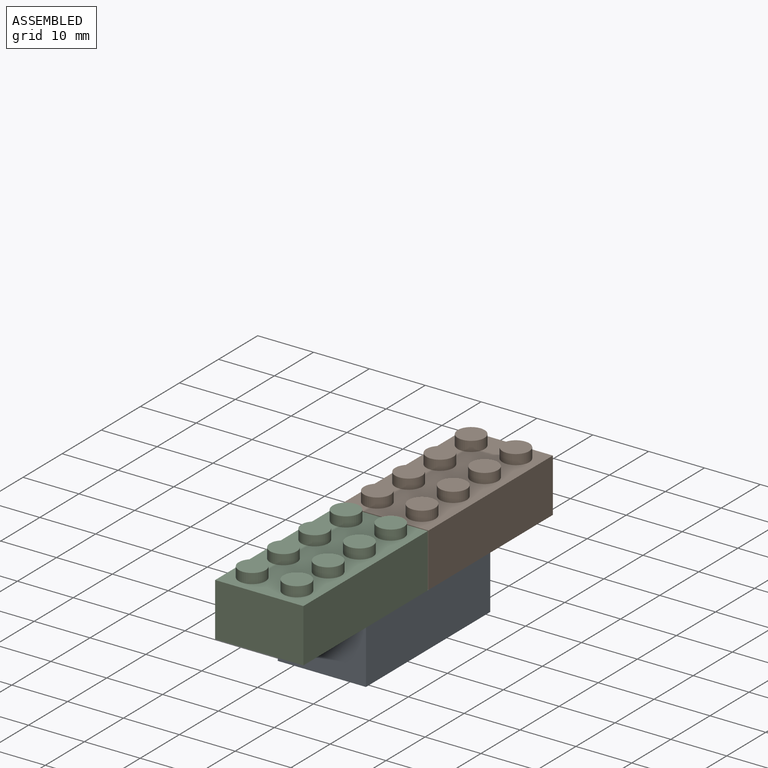
[diagram: assembled view]
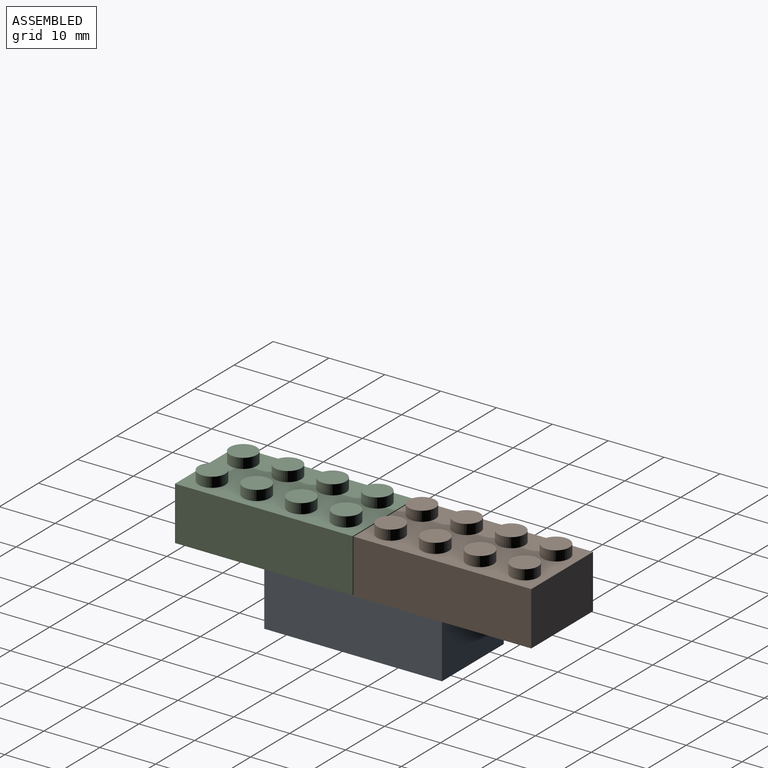
[diagram: assembled view, second angle]
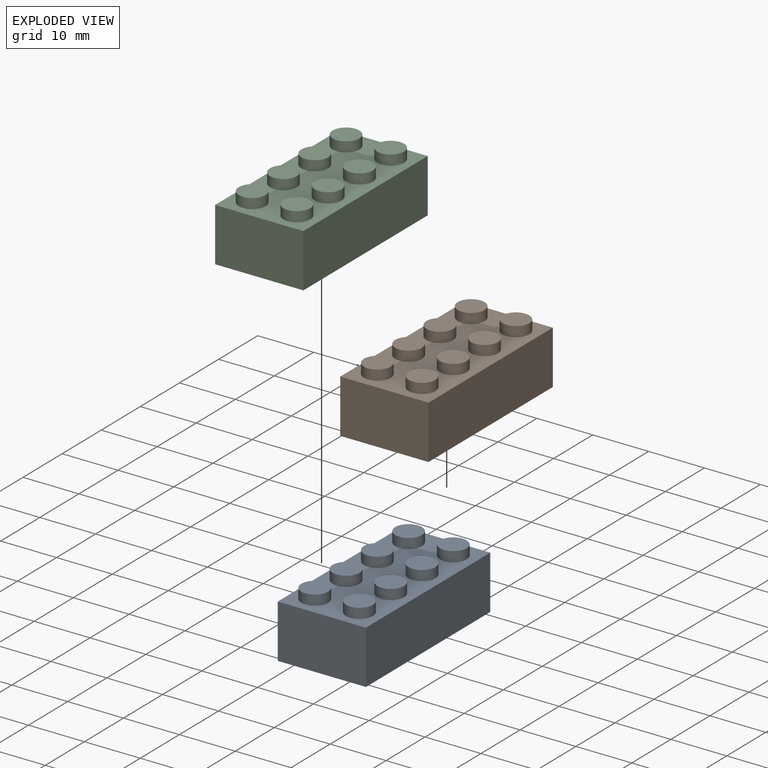
[diagram: exploded view]
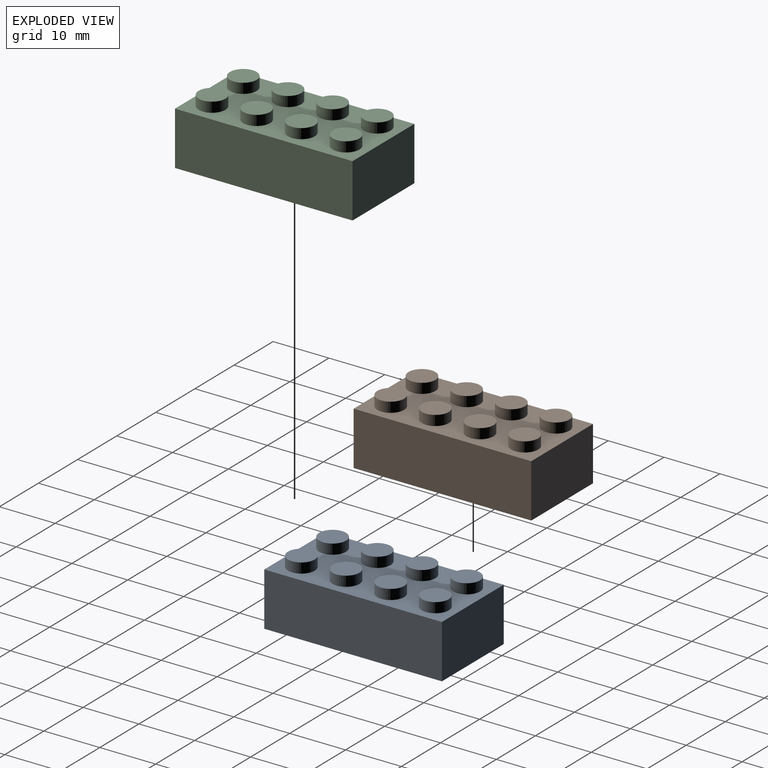
[diagram: exploded view, second angle]
ASSEMBLY  parts=3 mates=4
PART A: 55 faces, bbox 15.8x31.8x11.4 mm
  f0: plane 31.8x9.6mm, normal (1,0,0), area 305.3mm2, adj f1,f3,f4,f5
  f1: plane 15.8x9.6mm, normal (0,1,0), area 151.7mm2, adj f0,f2,f4,f5
  f2: plane 31.8x9.6mm, normal (-1,0,0), area 305.3mm2, adj f1,f3,f4,f5
  f3: plane 15.8x9.6mm, normal (0,-1,0), area 151.7mm2, adj f0,f2,f4,f5
  f4: plane 31.8x15.8mm, normal (0,0,1), area 357.7mm2, adj f0,f1,f2,f3,f6,f8,f10,f12
  f5: plane 31.8x15.8mm, normal (0,0,-1), area 91.2mm2, adj f0,f1,f2,f3,f22,f23,f24,f25
  f6: cylinder r=2.4mm len=4.8mm, axis (0,0,-1), area 27.1mm2, adj f4,f7
  f7: plane 4.8x4.8mm, normal (0,0,1), area 18.1mm2, adj f6
  f8: cylinder r=2.4mm len=4.8mm, axis (0,0,-1), area 27.1mm2, adj f4,f9
  f9: plane 4.8x4.8mm, normal (0,0,1), area 18.1mm2, adj f8
  f10: cylinder r=2.4mm len=4.8mm, axis (0,0,-1), area 27.1mm2, adj f4,f11
  f11: plane 4.8x4.8mm, normal (0,0,1), area 18.1mm2, adj f10
  f12: cylinder r=2.4mm len=4.8mm, axis (0,0,-1), area 27.1mm2, adj f4,f13
  f13: plane 4.8x4.8mm, normal (0,0,1), area 18.1mm2, adj f12
  f14: cylinder r=2.4mm len=4.8mm, axis (0,0,-1), area 27.1mm2, adj f4,f15
  f15: plane 4.8x4.8mm, normal (0,0,1), area 18.1mm2, adj f14
  f16: cylinder r=2.4mm len=4.8mm, axis (0,0,-1), area 27.1mm2, adj f4,f17
  f17: plane 4.8x4.8mm, normal (0,0,1), area 18.1mm2, adj f16
  f18: cylinder r=2.4mm len=4.8mm, axis (0,0,-1), area 27.1mm2, adj f4,f19
  f19: plane 4.8x4.8mm, normal (0,0,1), area 18.1mm2, adj f18
  f20: cylinder r=2.4mm len=4.8mm, axis (0,0,-1), area 27.1mm2, adj f4,f21
  f21: plane 4.8x4.8mm, normal (0,0,1), area 18.1mm2, adj f20
  f22: plane 29.8x8.6mm, normal (-1,0,0), area 256.3mm2, adj f5,f23,f25,f26
  f23: plane 13.8x8.6mm, normal (0,-1,0), area 118.7mm2, adj f5,f22,f24,f26
  f24: plane 29.8x8.6mm, normal (1,0,0), area 256.3mm2, adj f5,f23,f25,f26
  f25: plane 13.8x8.6mm, normal (0,1,0), area 118.7mm2, adj f5,f22,f24,f26
  f26: plane 29.8x13.8mm, normal (0,0,-1), area 262.1mm2, adj f22,f23,f24,f25,f27,f29,f31,f33
  f27: cylinder r=1.4mm len=2.8mm, axis (0,0,-1), area 15.8mm2, adj f26,f28
  f28: plane 2.8x2.8mm, normal (0,0,-1), area 6.2mm2, adj f27
  f29: cylinder r=1.4mm len=2.8mm, axis (0,0,-1), area 15.8mm2, adj f26,f30
  f30: plane 2.8x2.8mm, normal (0,0,-1), area 6.2mm2, adj f29
  f31: cylinder r=1.4mm len=2.8mm, axis (0,0,-1), area 15.8mm2, adj f26,f32
  f32: plane 2.8x2.8mm, normal (0,0,-1), area 6.2mm2, adj f31
  f33: cylinder r=1.4mm len=2.8mm, axis (0,0,-1), area 15.8mm2, adj f26,f34
  f34: plane 2.8x2.8mm, normal (0,0,-1), area 6.2mm2, adj f33
  f35: cylinder r=1.4mm len=2.8mm, axis (0,0,-1), area 15.8mm2, adj f26,f36
  f36: plane 2.8x2.8mm, normal (0,0,-1), area 6.2mm2, adj f35
  f37: cylinder r=1.4mm len=2.8mm, axis (0,0,-1), area 15.8mm2, adj f26,f38
  f38: plane 2.8x2.8mm, normal (0,0,-1), area 6.2mm2, adj f37
  f39: cylinder r=1.4mm len=2.8mm, axis (0,0,-1), area 15.8mm2, adj f26,f40
  f40: plane 2.8x2.8mm, normal (0,0,-1), area 6.2mm2, adj f39
  f41: cylinder r=1.4mm len=2.8mm, axis (0,0,-1), area 15.8mm2, adj f26,f42
  f42: plane 2.8x2.8mm, normal (0,0,-1), area 6.2mm2, adj f41
  f43: plane 6.51x6.51mm, normal (0,0,-1), area 15.2mm2, adj f44,f45
  f44: cylinder r=3.25mm len=8.6mm, axis (0,0,1), area 175.9mm2, adj f26,f43
  f45: cylinder r=2.4mm len=8.6mm, axis (0,0,1), area 129.7mm2, adj f43,f46
  f46: plane 4.8x4.8mm, normal (0,0,-1), area 18.1mm2, adj f45
  f47: plane 6.51x6.51mm, normal (0,0,-1), area 15.2mm2, adj f48,f49
  f48: cylinder r=3.25mm len=8.6mm, axis (0,0,1), area 175.9mm2, adj f26,f47
  f49: cylinder r=2.4mm len=8.6mm, axis (0,0,1), area 129.7mm2, adj f47,f50
  f50: plane 4.8x4.8mm, normal (0,0,-1), area 18.1mm2, adj f49
  f51: plane 6.51x6.51mm, normal (0,0,-1), area 15.2mm2, adj f52,f53
  f52: cylinder r=3.25mm len=8.6mm, axis (0,0,1), area 175.9mm2, adj f26,f51
  f53: cylinder r=2.4mm len=8.6mm, axis (0,0,1), area 129.7mm2, adj f51,f54
  f54: plane 4.8x4.8mm, normal (0,0,-1), area 18.1mm2, adj f53
PART B: same geometry as A
PART C: same geometry as A
PLACE A t=(-3.68,3.31,4.42)mm fixed
PLACE B t=(-3.68,19.31,14.02)mm
PLACE C t=(-3.68,-12.69,14.02)mm
MATE planar C.f48 <-> A.f48  axis (0,0,-1) through (-3.68,-12.69,14.02)mm
MATE slider A.f44 <-> C.f52  axis (0,0,1) through (-3.68,-4.69,8.72)mm
MATE slider A.f52 <-> B.f44  axis (0,0,1) through (-3.68,11.31,8.72)mm
MATE planar B.f5 <-> A.f48  axis (0,0,-1) through (3.22,34.21,14.02)mm
